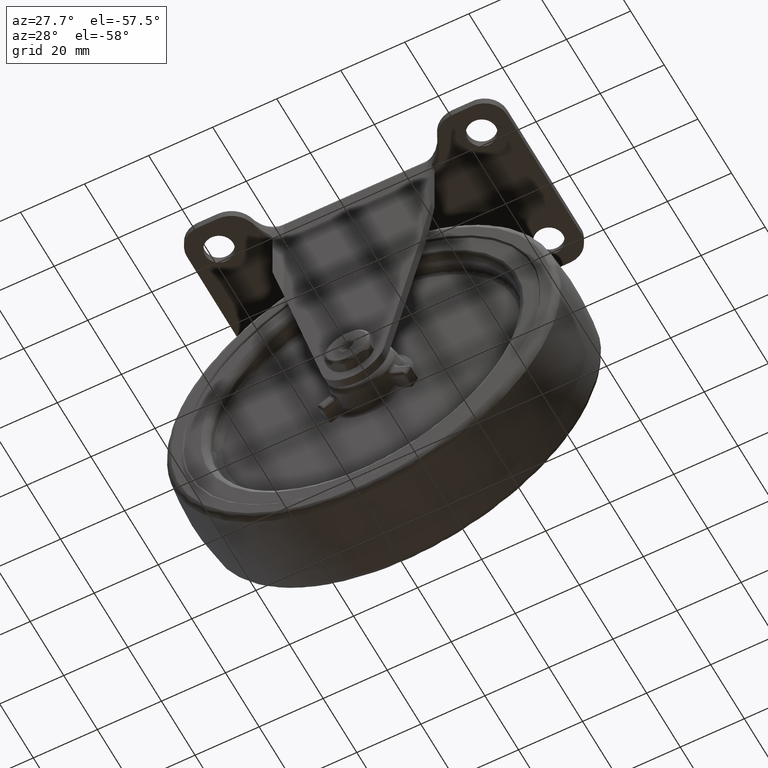
[diagram: clean part render]
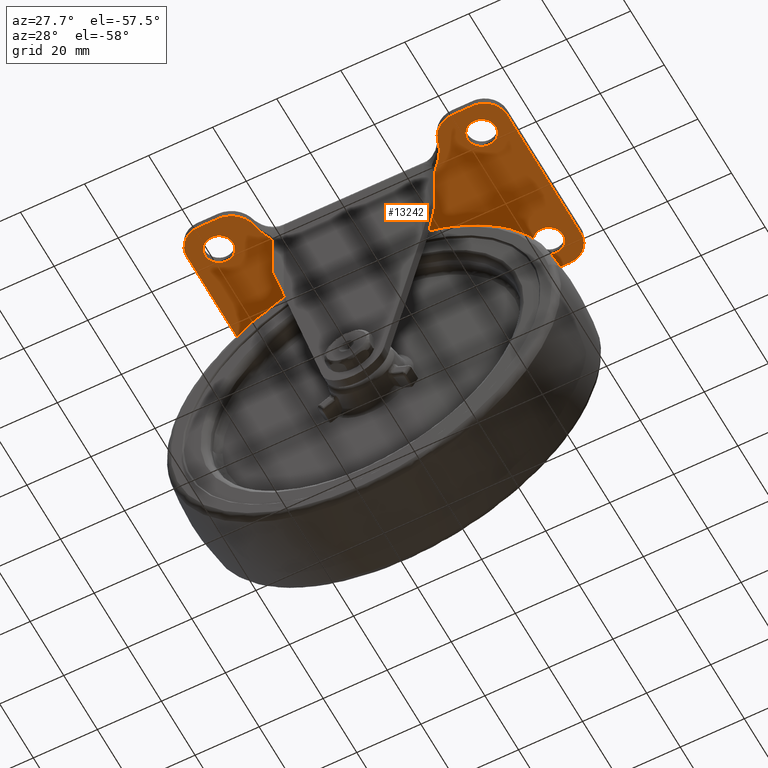
[diagram: same view with one face highlighted and labeled with its STEP entity id]
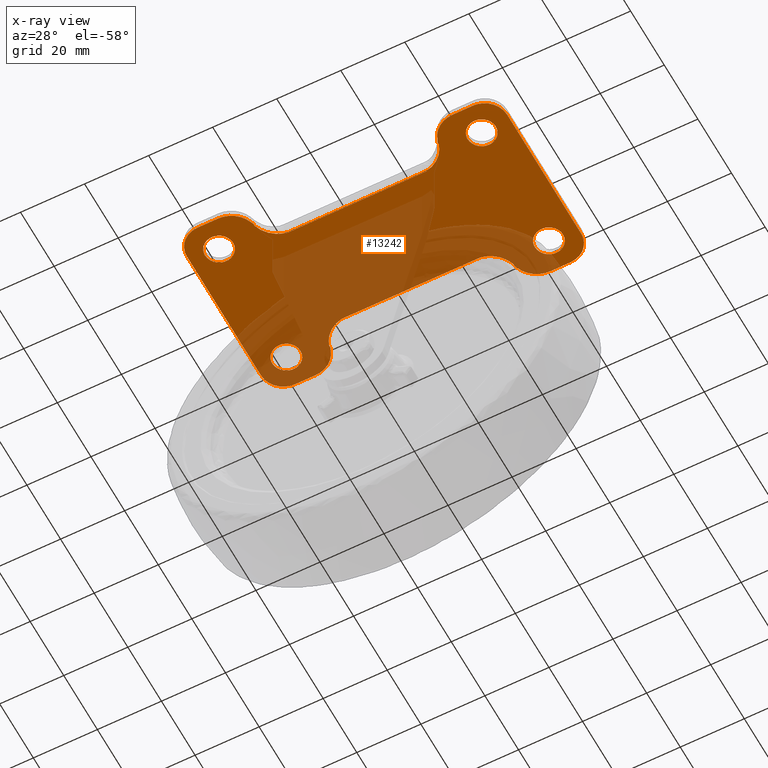
[diagram: x-ray of the same camera — body ghosted, the highlighted face saturated]
A machine part, auxiliary view. The second image highlights one B-rep face of the part: STEP entity #13242.
The next image is the same camera in x-ray: the body ghosted, the highlighted face saturated — about 48% of this face is hidden behind the body in this view.
In plain terms, the highlighted face is a freeform B-spline surface patch.
Its self-contained STEP definition (entity closure, byte-faithful):
#10641=CARTESIAN_POINT('',(45.400000100000007,-20.0,83.0));
#10642=VERTEX_POINT('',#10641);
#10643=CARTESIAN_POINT('',(41.345220029112987,-24.386436368112410,83.0));
#10644=VERTEX_POINT('',#10643);
#10645=CARTESIAN_POINT('',(45.400000100000007,-20.0,83.0));
#10646=CARTESIAN_POINT('',(45.400000100000000,-24.067318255615056,82.999999999999986));
#10647=CARTESIAN_POINT('',(41.345220029112994,-24.386436368112413,83.0));
#10655=(BOUNDED_CURVE()B_SPLINE_CURVE(2,(#10645,#10646,#10647),.UNSPECIFIED.,.F.,.U.)B_SPLINE_CURVE_WITH_KNOTS((3,3),(0.0,0.236331300627720),.UNSPECIFIED.)CURVE()GEOMETRIC_REPRESENTATION_ITEM()RATIONAL_B_SPLINE_CURVE((1.0,0.723120658611109,0.969723356161283))REPRESENTATION_ITEM(''));
#10656=EDGE_CURVE('',#10642,#10644,#10655,.T.);
#10697=CARTESIAN_POINT('',(40.654779970887013,-15.613563631887590,83.0));
#10698=VERTEX_POINT('',#10697);
#10704=CARTESIAN_POINT('',(40.654779970887020,-15.613563631887583,83.0));
#10705=CARTESIAN_POINT('',(40.827123525172375,-15.599999900000004,83.0));
#10706=CARTESIAN_POINT('',(41.0,-15.599999900000000,83.0));
#10707=CARTESIAN_POINT('',(45.400000100000014,-15.599999900000011,83.0));
#10708=CARTESIAN_POINT('',(45.400000100000007,-20.0,83.0));
#10716=(BOUNDED_CURVE()B_SPLINE_CURVE(2,(#10704,#10705,#10706,#10707,#10708),.UNSPECIFIED.,.F.,.U.)B_SPLINE_CURVE_WITH_KNOTS((3,2,3),(0.736331300627720,0.750000000000000,1.0),.UNSPECIFIED.)CURVE()GEOMETRIC_REPRESENTATION_ITEM()RATIONAL_B_SPLINE_CURVE((0.969723356161284,0.983986122575438,1.0,0.707106781186547,1.0))REPRESENTATION_ITEM(''));
#10717=EDGE_CURVE('',#10698,#10642,#10716,.T.);
#10740=CARTESIAN_POINT('',(36.599999900000000,-20.0,83.0));
#10741=VERTEX_POINT('',#10740);
#10742=CARTESIAN_POINT('',(41.345220029112994,-24.386436368112420,83.0));
#10743=CARTESIAN_POINT('',(41.172876474827625,-24.400000100000003,83.0));
#10744=CARTESIAN_POINT('',(41.0,-24.400000100000000,83.0));
#10745=CARTESIAN_POINT('',(36.599999900000000,-24.400000100000007,83.0));
#10746=CARTESIAN_POINT('',(36.599999900000000,-20.0,83.0));
#10754=(BOUNDED_CURVE()B_SPLINE_CURVE(2,(#10742,#10743,#10744,#10745,#10746),.UNSPECIFIED.,.F.,.U.)B_SPLINE_CURVE_WITH_KNOTS((3,2,3),(0.236331300627720,0.250000000000000,0.500000000000000),.UNSPECIFIED.)CURVE()GEOMETRIC_REPRESENTATION_ITEM()RATIONAL_B_SPLINE_CURVE((0.969723356161284,0.983986122575438,1.0,0.707106781186547,1.0))REPRESENTATION_ITEM(''));
#10755=EDGE_CURVE('',#10644,#10741,#10754,.T.);
#10757=CARTESIAN_POINT('',(36.599999900000000,-20.0,83.0));
#10758=CARTESIAN_POINT('',(36.599999900000000,-15.932681744384933,83.0));
#10759=CARTESIAN_POINT('',(40.654779970887006,-15.613563631887587,83.0));
#10767=(BOUNDED_CURVE()B_SPLINE_CURVE(2,(#10757,#10758,#10759),.UNSPECIFIED.,.F.,.U.)B_SPLINE_CURVE_WITH_KNOTS((3,3),(0.500000000000000,0.736331300627721),.UNSPECIFIED.)CURVE()GEOMETRIC_REPRESENTATION_ITEM()RATIONAL_B_SPLINE_CURVE((1.0,0.723120658611108,0.969723356161285))REPRESENTATION_ITEM(''));
#10768=EDGE_CURVE('',#10741,#10698,#10767,.T.);
#10823=CARTESIAN_POINT('',(-36.599999900000000,-20.0,83.0));
#10824=VERTEX_POINT('',#10823);
#10825=CARTESIAN_POINT('',(-40.654779970887013,-24.386436368112410,83.0));
#10826=VERTEX_POINT('',#10825);
#10827=CARTESIAN_POINT('',(-36.599999900000000,-20.0,83.0));
#10828=CARTESIAN_POINT('',(-36.599999900000000,-24.067318255615056,82.999999999999986));
#10829=CARTESIAN_POINT('',(-40.654779970887006,-24.386436368112413,83.0));
#10837=(BOUNDED_CURVE()B_SPLINE_CURVE(2,(#10827,#10828,#10829),.UNSPECIFIED.,.F.,.U.)B_SPLINE_CURVE_WITH_KNOTS((3,3),(0.0,0.236331300627720),.UNSPECIFIED.)CURVE()GEOMETRIC_REPRESENTATION_ITEM()RATIONAL_B_SPLINE_CURVE((1.0,0.723120658611109,0.969723356161283))REPRESENTATION_ITEM(''));
#10838=EDGE_CURVE('',#10824,#10826,#10837,.T.);
#10879=CARTESIAN_POINT('',(-41.345220029112987,-15.613563631887590,83.0));
#10880=VERTEX_POINT('',#10879);
#10886=CARTESIAN_POINT('',(-41.345220029112994,-15.613563631887587,83.0));
#10887=CARTESIAN_POINT('',(-41.172876474827625,-15.599999900000006,83.0));
#10888=CARTESIAN_POINT('',(-41.0,-15.599999900000000,83.0));
#10889=CARTESIAN_POINT('',(-36.599999900000000,-15.599999900000011,83.0));
#10890=CARTESIAN_POINT('',(-36.599999900000000,-20.0,83.0));
#10898=(BOUNDED_CURVE()B_SPLINE_CURVE(2,(#10886,#10887,#10888,#10889,#10890),.UNSPECIFIED.,.F.,.U.)B_SPLINE_CURVE_WITH_KNOTS((3,2,3),(0.736331300627720,0.750000000000000,1.0),.UNSPECIFIED.)CURVE()GEOMETRIC_REPRESENTATION_ITEM()RATIONAL_B_SPLINE_CURVE((0.969723356161283,0.983986122575438,1.0,0.707106781186547,1.0))REPRESENTATION_ITEM(''));
#10899=EDGE_CURVE('',#10880,#10824,#10898,.T.);
#10922=CARTESIAN_POINT('',(-45.400000100000007,-20.0,83.0));
#10923=VERTEX_POINT('',#10922);
#10924=CARTESIAN_POINT('',(-40.654779970887006,-24.386436368112413,83.0));
#10925=CARTESIAN_POINT('',(-40.827123525172382,-24.400000100000003,83.000000000000014));
#10926=CARTESIAN_POINT('',(-41.0,-24.400000100000000,83.0));
#10927=CARTESIAN_POINT('',(-45.400000100000014,-24.400000100000007,83.0));
#10928=CARTESIAN_POINT('',(-45.400000100000007,-20.0,83.0));
#10936=(BOUNDED_CURVE()B_SPLINE_CURVE(2,(#10924,#10925,#10926,#10927,#10928),.UNSPECIFIED.,.F.,.U.)B_SPLINE_CURVE_WITH_KNOTS((3,2,3),(0.236331300627720,0.250000000000000,0.500000000000000),.UNSPECIFIED.)CURVE()GEOMETRIC_REPRESENTATION_ITEM()RATIONAL_B_SPLINE_CURVE((0.969723356161283,0.983986122575438,1.0,0.707106781186547,1.0))REPRESENTATION_ITEM(''));
#10937=EDGE_CURVE('',#10826,#10923,#10936,.T.);
#10939=CARTESIAN_POINT('',(-45.400000100000007,-20.0,83.0));
#10940=CARTESIAN_POINT('',(-45.400000100000000,-15.932681744384933,83.0));
#10941=CARTESIAN_POINT('',(-41.345220029112994,-15.613563631887587,83.0));
#10949=(BOUNDED_CURVE()B_SPLINE_CURVE(2,(#10939,#10940,#10941),.UNSPECIFIED.,.F.,.U.)B_SPLINE_CURVE_WITH_KNOTS((3,3),(0.500000000000000,0.736331300627721),.UNSPECIFIED.)CURVE()GEOMETRIC_REPRESENTATION_ITEM()RATIONAL_B_SPLINE_CURVE((1.0,0.723120658611108,0.969723356161285))REPRESENTATION_ITEM(''));
#10950=EDGE_CURVE('',#10923,#10880,#10949,.T.);
#11005=CARTESIAN_POINT('',(-36.599999900000000,20.0,83.0));
#11006=VERTEX_POINT('',#11005);
#11007=CARTESIAN_POINT('',(-40.654779970887013,15.613563631887590,83.0));
#11008=VERTEX_POINT('',#11007);
#11009=CARTESIAN_POINT('',(-36.599999900000000,20.0,83.0));
#11010=CARTESIAN_POINT('',(-36.599999900000007,15.932681744384960,83.0));
#11011=CARTESIAN_POINT('',(-40.654779970887013,15.613563631887590,83.0));
#11019=(BOUNDED_CURVE()B_SPLINE_CURVE(2,(#11009,#11010,#11011),.UNSPECIFIED.,.F.,.U.)B_SPLINE_CURVE_WITH_KNOTS((3,3),(0.0,0.236331300627720),.UNSPECIFIED.)CURVE()GEOMETRIC_REPRESENTATION_ITEM()RATIONAL_B_SPLINE_CURVE((1.0,0.723120658611109,0.969723356161283))REPRESENTATION_ITEM(''));
#11020=EDGE_CURVE('',#11006,#11008,#11019,.T.);
#11061=CARTESIAN_POINT('',(-41.345220029112987,24.386436368112410,83.0));
#11062=VERTEX_POINT('',#11061);
#11068=CARTESIAN_POINT('',(-41.345220029112994,24.386436368112413,83.0));
#11069=CARTESIAN_POINT('',(-41.172876474827625,24.400000099999993,83.0));
#11070=CARTESIAN_POINT('',(-41.0,24.400000100000000,83.0));
#11071=CARTESIAN_POINT('',(-36.599999900000000,24.400000100000007,83.0));
#11072=CARTESIAN_POINT('',(-36.599999900000000,20.0,83.0));
#11080=(BOUNDED_CURVE()B_SPLINE_CURVE(2,(#11068,#11069,#11070,#11071,#11072),.UNSPECIFIED.,.F.,.U.)B_SPLINE_CURVE_WITH_KNOTS((3,2,3),(0.736331300627720,0.750000000000000,1.0),.UNSPECIFIED.)CURVE()GEOMETRIC_REPRESENTATION_ITEM()RATIONAL_B_SPLINE_CURVE((0.969723356161283,0.983986122575438,1.0,0.707106781186547,1.0))REPRESENTATION_ITEM(''));
#11081=EDGE_CURVE('',#11062,#11006,#11080,.T.);
#11104=CARTESIAN_POINT('',(-45.400000100000007,20.0,83.0));
#11105=VERTEX_POINT('',#11104);
#11106=CARTESIAN_POINT('',(-40.654779970887006,15.613563631887587,83.0));
#11107=CARTESIAN_POINT('',(-40.827123525172375,15.599999900000006,83.000000000000014));
#11108=CARTESIAN_POINT('',(-41.0,15.599999900000000,83.0));
#11109=CARTESIAN_POINT('',(-45.400000100000014,15.599999900000011,83.0));
#11110=CARTESIAN_POINT('',(-45.400000100000007,20.0,83.0));
#11118=(BOUNDED_CURVE()B_SPLINE_CURVE(2,(#11106,#11107,#11108,#11109,#11110),.UNSPECIFIED.,.F.,.U.)B_SPLINE_CURVE_WITH_KNOTS((3,2,3),(0.236331300627720,0.250000000000000,0.500000000000000),.UNSPECIFIED.)CURVE()GEOMETRIC_REPRESENTATION_ITEM()RATIONAL_B_SPLINE_CURVE((0.969723356161283,0.983986122575438,1.0,0.707106781186547,1.0))REPRESENTATION_ITEM(''));
#11119=EDGE_CURVE('',#11008,#11105,#11118,.T.);
#11121=CARTESIAN_POINT('',(-45.400000100000007,20.0,83.0));
#11122=CARTESIAN_POINT('',(-45.400000100000000,24.067318255615078,83.0));
#11123=CARTESIAN_POINT('',(-41.345220029112994,24.386436368112417,83.0));
#11131=(BOUNDED_CURVE()B_SPLINE_CURVE(2,(#11121,#11122,#11123),.UNSPECIFIED.,.F.,.U.)B_SPLINE_CURVE_WITH_KNOTS((3,3),(0.500000000000000,0.736331300627721),.UNSPECIFIED.)CURVE()GEOMETRIC_REPRESENTATION_ITEM()RATIONAL_B_SPLINE_CURVE((1.0,0.723120658611108,0.969723356161285))REPRESENTATION_ITEM(''));
#11132=EDGE_CURVE('',#11105,#11062,#11131,.T.);
#11187=CARTESIAN_POINT('',(45.400000100000007,20.0,83.0));
#11188=VERTEX_POINT('',#11187);
#11189=CARTESIAN_POINT('',(41.345220029112987,15.613563631887590,83.0));
#11190=VERTEX_POINT('',#11189);
#11191=CARTESIAN_POINT('',(45.400000100000007,20.0,83.0));
#11192=CARTESIAN_POINT('',(45.400000100000000,15.932681744384961,82.999999999999986));
#11193=CARTESIAN_POINT('',(41.345220029112994,15.613563631887587,83.0));
#11201=(BOUNDED_CURVE()B_SPLINE_CURVE(2,(#11191,#11192,#11193),.UNSPECIFIED.,.F.,.U.)B_SPLINE_CURVE_WITH_KNOTS((3,3),(0.0,0.236331300627720),.UNSPECIFIED.)CURVE()GEOMETRIC_REPRESENTATION_ITEM()RATIONAL_B_SPLINE_CURVE((1.0,0.723120658611109,0.969723356161283))REPRESENTATION_ITEM(''));
#11202=EDGE_CURVE('',#11188,#11190,#11201,.T.);
#11243=CARTESIAN_POINT('',(40.654779970887013,24.386436368112410,83.0));
#11244=VERTEX_POINT('',#11243);
#11250=CARTESIAN_POINT('',(40.654779970887006,24.386436368112413,83.0));
#11251=CARTESIAN_POINT('',(40.827123525172382,24.400000099999993,83.0));
#11252=CARTESIAN_POINT('',(41.0,24.400000100000000,83.0));
#11253=CARTESIAN_POINT('',(45.400000100000014,24.400000100000007,83.0));
#11254=CARTESIAN_POINT('',(45.400000100000007,20.0,83.0));
#11262=(BOUNDED_CURVE()B_SPLINE_CURVE(2,(#11250,#11251,#11252,#11253,#11254),.UNSPECIFIED.,.F.,.U.)B_SPLINE_CURVE_WITH_KNOTS((3,2,3),(0.736331300627720,0.750000000000000,1.0),.UNSPECIFIED.)CURVE()GEOMETRIC_REPRESENTATION_ITEM()RATIONAL_B_SPLINE_CURVE((0.969723356161283,0.983986122575438,1.0,0.707106781186547,1.0))REPRESENTATION_ITEM(''));
#11263=EDGE_CURVE('',#11244,#11188,#11262,.T.);
#11286=CARTESIAN_POINT('',(36.599999900000000,20.0,83.0));
#11287=VERTEX_POINT('',#11286);
#11288=CARTESIAN_POINT('',(41.345220029112994,15.613563631887587,83.0));
#11289=CARTESIAN_POINT('',(41.172876474827625,15.599999900000006,83.000000000000014));
#11290=CARTESIAN_POINT('',(41.0,15.599999900000000,83.0));
#11291=CARTESIAN_POINT('',(36.599999900000000,15.599999900000011,83.0));
#11292=CARTESIAN_POINT('',(36.599999900000000,20.0,83.0));
#11300=(BOUNDED_CURVE()B_SPLINE_CURVE(2,(#11288,#11289,#11290,#11291,#11292),.UNSPECIFIED.,.F.,.U.)B_SPLINE_CURVE_WITH_KNOTS((3,2,3),(0.236331300627720,0.250000000000000,0.500000000000000),.UNSPECIFIED.)CURVE()GEOMETRIC_REPRESENTATION_ITEM()RATIONAL_B_SPLINE_CURVE((0.969723356161283,0.983986122575438,1.0,0.707106781186547,1.0))REPRESENTATION_ITEM(''));
#11301=EDGE_CURVE('',#11190,#11287,#11300,.T.);
#11303=CARTESIAN_POINT('',(36.599999900000000,20.0,83.0));
#11304=CARTESIAN_POINT('',(36.599999900000000,24.067318255615078,83.0));
#11305=CARTESIAN_POINT('',(40.654779970887006,24.386436368112417,83.0));
#11313=(BOUNDED_CURVE()B_SPLINE_CURVE(2,(#11303,#11304,#11305),.UNSPECIFIED.,.F.,.U.)B_SPLINE_CURVE_WITH_KNOTS((3,3),(0.500000000000000,0.736331300627721),.UNSPECIFIED.)CURVE()GEOMETRIC_REPRESENTATION_ITEM()RATIONAL_B_SPLINE_CURVE((1.0,0.723120658611108,0.969723356161285))REPRESENTATION_ITEM(''));
#11314=EDGE_CURVE('',#11287,#11244,#11313,.T.);
#12096=CARTESIAN_POINT('',(28.745237669189049,-22.921851549150301,83.0));
#12097=VERTEX_POINT('',#12096);
#12112=CARTESIAN_POINT('',(28.745237669189049,-22.144441359476499,83.0));
#12113=VERTEX_POINT('',#12112);
#12127=CARTESIAN_POINT('',(28.745237669189049,-22.921851549150301,83.0));
#12128=CARTESIAN_POINT('',(28.745237669189049,-22.144441359476499,83.0));
#12129=QUASI_UNIFORM_CURVE('',1,(#12127,#12128),.UNSPECIFIED.,.F.,.U.);
#12130=EDGE_CURVE('',#12097,#12113,#12129,.T.);
#12299=CARTESIAN_POINT('',(-28.745237669189049,-22.144441359476499,83.0));
#12300=VERTEX_POINT('',#12299);
#12315=CARTESIAN_POINT('',(-28.745237669189049,-22.921851549150698,83.0));
#12316=VERTEX_POINT('',#12315);
#12330=CARTESIAN_POINT('',(-28.745237669189049,-22.921851549150698,83.0));
#12331=CARTESIAN_POINT('',(-28.745237669189049,-22.144441359476499,83.0));
#12332=QUASI_UNIFORM_CURVE('',1,(#12330,#12331),.UNSPECIFIED.,.F.,.U.);
#12333=EDGE_CURVE('',#12316,#12300,#12332,.T.);
#12626=CARTESIAN_POINT('',(-28.745237669189049,22.921851549150698,83.0));
#12627=VERTEX_POINT('',#12626);
#12642=CARTESIAN_POINT('',(-28.745237669189049,22.144441359476499,83.0));
#12643=VERTEX_POINT('',#12642);
#12657=CARTESIAN_POINT('',(-28.745237669189049,22.144441359476499,83.0));
#12658=CARTESIAN_POINT('',(-28.745237669189049,22.921851549150698,83.0));
#12659=QUASI_UNIFORM_CURVE('',1,(#12657,#12658),.UNSPECIFIED.,.F.,.U.);
#12660=EDGE_CURVE('',#12643,#12627,#12659,.T.);
#12768=CARTESIAN_POINT('',(28.745237669189049,22.144441359476499,83.0));
#12769=VERTEX_POINT('',#12768);
#12784=CARTESIAN_POINT('',(28.745237669189049,22.921851549150301,83.0));
#12785=VERTEX_POINT('',#12784);
#12799=CARTESIAN_POINT('',(28.745237669189049,22.144441359476499,83.0));
#12800=CARTESIAN_POINT('',(28.745237669189049,22.921851549150301,83.0));
#12801=QUASI_UNIFORM_CURVE('',1,(#12799,#12800),.UNSPECIFIED.,.F.,.U.);
#12802=EDGE_CURVE('',#12769,#12785,#12801,.T.);
#12825=CARTESIAN_POINT('',(-21.590155530322349,16.0,83.0));
#12826=VERTEX_POINT('',#12825);
#12832=CARTESIAN_POINT('',(-21.590155530322349,15.999999999999989,83.0));
#12833=CARTESIAN_POINT('',(-27.054956261418130,16.874543607641517,83.0));
#12834=CARTESIAN_POINT('',(-28.745237669189020,22.144441359476509,83.0));
#12842=(BOUNDED_CURVE()B_SPLINE_CURVE(2,(#12832,#12833,#12834),.UNSPECIFIED.,.F.,.U.)CURVE()GEOMETRIC_REPRESENTATION_ITEM()QUASI_UNIFORM_CURVE()RATIONAL_B_SPLINE_CURVE((1.0,0.852071238014258,1.0))REPRESENTATION_ITEM(''));
#12843=EDGE_CURVE('',#12826,#12643,#12842,.T.);
#12863=CARTESIAN_POINT('',(21.590155530322349,-16.0,83.0));
#12864=VERTEX_POINT('',#12863);
#12870=CARTESIAN_POINT('',(21.590155530322338,-15.999999999999989,83.0));
#12871=CARTESIAN_POINT('',(27.054956261418120,-16.874543607641510,83.0));
#12872=CARTESIAN_POINT('',(28.745237669189020,-22.144441359476509,83.0));
#12880=(BOUNDED_CURVE()B_SPLINE_CURVE(2,(#12870,#12871,#12872),.UNSPECIFIED.,.F.,.U.)CURVE()GEOMETRIC_REPRESENTATION_ITEM()QUASI_UNIFORM_CURVE()RATIONAL_B_SPLINE_CURVE((1.0,0.852071238014258,1.0))REPRESENTATION_ITEM(''));
#12881=EDGE_CURVE('',#12864,#12113,#12880,.T.);
#12905=CARTESIAN_POINT('',(-21.590155530322349,-16.0,83.0));
#12906=VERTEX_POINT('',#12905);
#12907=CARTESIAN_POINT('',(-28.745237669189020,-22.144441359476509,83.0));
#12908=CARTESIAN_POINT('',(-27.054956261418127,-16.874543607641513,83.0));
#12909=CARTESIAN_POINT('',(-21.590155530322360,-15.999999999999989,83.0));
#12917=(BOUNDED_CURVE()B_SPLINE_CURVE(2,(#12907,#12908,#12909),.UNSPECIFIED.,.F.,.U.)CURVE()GEOMETRIC_REPRESENTATION_ITEM()QUASI_UNIFORM_CURVE()RATIONAL_B_SPLINE_CURVE((1.0,0.852071238014258,1.0))REPRESENTATION_ITEM(''));
#12918=EDGE_CURVE('',#12300,#12906,#12917,.T.);
#12950=CARTESIAN_POINT('',(21.590155530322349,16.0,83.0));
#12951=VERTEX_POINT('',#12950);
#12952=CARTESIAN_POINT('',(28.745237669189020,22.144441359476509,83.0));
#12953=CARTESIAN_POINT('',(27.054956261418127,16.874543607641506,83.000000000000014));
#12954=CARTESIAN_POINT('',(21.590155530322349,15.999999999999989,83.0));
#12962=(BOUNDED_CURVE()B_SPLINE_CURVE(2,(#12952,#12953,#12954),.UNSPECIFIED.,.F.,.U.)CURVE()GEOMETRIC_REPRESENTATION_ITEM()QUASI_UNIFORM_CURVE()RATIONAL_B_SPLINE_CURVE((1.0,0.852071238014258,1.0))REPRESENTATION_ITEM(''));
#12963=EDGE_CURVE('',#12769,#12951,#12962,.T.);
#12973=CARTESIAN_POINT('',(-54.994999806180601,-31.897099887584751,83.0));
#12974=CARTESIAN_POINT('',(54.995002488389623,-31.897099887584751,83.0));
#12975=CARTESIAN_POINT('',(-54.994999806180601,31.897101443265981,83.0));
#12976=CARTESIAN_POINT('',(54.995002488389623,31.897101443265981,83.0));
#12977=B_SPLINE_SURFACE_WITH_KNOTS('',1,1,((#12973,#12975),(#12974,#12976)),.UNSPECIFIED.,.F.,.F.,.U.,(2,2),(2,2),(0.0,109.990002294570200),(0.0,63.794201330850733),.UNSPECIFIED.);
#12978=ORIENTED_EDGE('',*,*,#12918,.F.);
#12979=ORIENTED_EDGE('',*,*,#12333,.F.);
#12980=CARTESIAN_POINT('',(-29.102524228969649,-23.750001552712749,83.0));
#12981=VERTEX_POINT('',#12980);
#12982=CARTESIAN_POINT('',(-28.745237669189049,-22.921851549150698,83.0));
#12983=CARTESIAN_POINT('',(-28.947259885844428,-23.325840144237215,83.0));
#12984=CARTESIAN_POINT('',(-29.102524228969649,-23.750001552712749,83.0));
#12992=(BOUNDED_CURVE()B_SPLINE_CURVE(2,(#12982,#12983,#12984),.UNSPECIFIED.,.F.,.U.)CURVE()GEOMETRIC_REPRESENTATION_ITEM()QUASI_UNIFORM_CURVE()RATIONAL_B_SPLINE_CURVE((1.0,0.998409895108221,1.0))REPRESENTATION_ITEM(''));
#12993=EDGE_CURVE('',#12316,#12981,#12992,.T.);
#12994=ORIENTED_EDGE('',*,*,#12993,.T.);
#12995=CARTESIAN_POINT('',(-36.615010000000012,-29.0,83.0));
#12996=VERTEX_POINT('',#12995);
#12997=CARTESIAN_POINT('',(-29.102524228969649,-23.750001552712749,83.0));
#12998=CARTESIAN_POINT('',(-31.024323567332885,-28.999999473630670,82.999999999999986));
#12999=CARTESIAN_POINT('',(-36.615010000000012,-29.0,83.0));
#13007=(BOUNDED_CURVE()B_SPLINE_CURVE(2,(#12997,#12998,#12999),.UNSPECIFIED.,.F.,.U.)CURVE()GEOMETRIC_REPRESENTATION_ITEM()QUASI_UNIFORM_CURVE()RATIONAL_B_SPLINE_CURVE((1.0,0.819679914869648,1.0))REPRESENTATION_ITEM(''));
#13008=EDGE_CURVE('',#12981,#12996,#13007,.T.);
#13009=ORIENTED_EDGE('',*,*,#13008,.T.);
#13010=CARTESIAN_POINT('',(-43.0,-29.0,83.0));
#13011=VERTEX_POINT('',#13010);
#13012=CARTESIAN_POINT('',(-36.615010000000012,-29.0,83.0));
#13013=CARTESIAN_POINT('',(-43.0,-29.0,83.0));
#13014=QUASI_UNIFORM_CURVE('',1,(#13012,#13013),.UNSPECIFIED.,.F.,.U.);
#13015=EDGE_CURVE('',#12996,#13011,#13014,.T.);
#13016=ORIENTED_EDGE('',*,*,#13015,.T.);
#13017=CARTESIAN_POINT('',(-50.0,-21.999997556539199,83.0));
#13018=VERTEX_POINT('',#13017);
#13019=CARTESIAN_POINT('',(-43.0,-29.0,83.0));
#13020=CARTESIAN_POINT('',(-45.899495652284777,-28.999999999999993,83.0));
#13021=CARTESIAN_POINT('',(-47.949748332199597,-26.949746604411910,83.0));
#13022=CARTESIAN_POINT('',(-50.000001012114424,-24.899493208823817,83.0));
#13023=CARTESIAN_POINT('',(-50.0,-21.999997556539199,83.0));
#13031=(BOUNDED_CURVE()B_SPLINE_CURVE(2,(#13019,#13020,#13021,#13022,#13023),.UNSPECIFIED.,.F.,.U.)B_SPLINE_CURVE_WITH_KNOTS((3,2,3),(0.0,0.500000000000000,1.0),.UNSPECIFIED.)CURVE()GEOMETRIC_REPRESENTATION_ITEM()RATIONAL_B_SPLINE_CURVE((1.0,0.923879499115856,1.0,0.923879499115856,1.0))REPRESENTATION_ITEM(''));
#13032=EDGE_CURVE('',#13011,#13018,#13031,.T.);
#13033=ORIENTED_EDGE('',*,*,#13032,.T.);
#13034=CARTESIAN_POINT('',(-50.0,22.0,83.0));
#13035=VERTEX_POINT('',#13034);
#13036=CARTESIAN_POINT('',(-50.0,-21.999997556539199,83.0));
#13037=CARTESIAN_POINT('',(-50.0,22.0,83.0));
#13038=QUASI_UNIFORM_CURVE('',1,(#13036,#13037),.UNSPECIFIED.,.F.,.U.);
#13039=EDGE_CURVE('',#13018,#13035,#13038,.T.);
#13040=ORIENTED_EDGE('',*,*,#13039,.T.);
#13041=CARTESIAN_POINT('',(-43.000003665191407,29.0,83.0));
#13042=VERTEX_POINT('',#13041);
#13043=CARTESIAN_POINT('',(-49.999999999999993,22.0,83.0));
#13044=CARTESIAN_POINT('',(-49.999999999999986,28.999996334809556,83.0));
#13045=CARTESIAN_POINT('',(-43.000003665191407,29.0,83.0));
#13053=(BOUNDED_CURVE()B_SPLINE_CURVE(2,(#13043,#13044,#13045),.UNSPECIFIED.,.F.,.U.)CURVE()GEOMETRIC_REPRESENTATION_ITEM()QUASI_UNIFORM_CURVE()RATIONAL_B_SPLINE_CURVE((1.0,0.707106966306645,1.0))REPRESENTATION_ITEM(''));
#13054=EDGE_CURVE('',#13035,#13042,#13053,.T.);
#13055=ORIENTED_EDGE('',*,*,#13054,.T.);
#13056=CARTESIAN_POINT('',(-36.615010000000012,29.0,83.0));
#13057=VERTEX_POINT('',#13056);
#13058=CARTESIAN_POINT('',(-43.000003665191407,29.0,83.0));
#13059=CARTESIAN_POINT('',(-36.615010000000012,29.0,83.0));
#13060=QUASI_UNIFORM_CURVE('',1,(#13058,#13059),.UNSPECIFIED.,.F.,.U.);
#13061=EDGE_CURVE('',#13042,#13057,#13060,.T.);
#13062=ORIENTED_EDGE('',*,*,#13061,.T.);
#13063=CARTESIAN_POINT('',(-29.102524228969649,23.750001552712749,83.0));
#13064=VERTEX_POINT('',#13063);
#13065=CARTESIAN_POINT('',(-36.615010000000012,29.0,83.0));
#13066=CARTESIAN_POINT('',(-31.024323567332878,28.999999473630663,83.0));
#13067=CARTESIAN_POINT('',(-29.102524228969649,23.750001552712749,83.0));
#13075=(BOUNDED_CURVE()B_SPLINE_CURVE(2,(#13065,#13066,#13067),.UNSPECIFIED.,.F.,.U.)CURVE()GEOMETRIC_REPRESENTATION_ITEM()QUASI_UNIFORM_CURVE()RATIONAL_B_SPLINE_CURVE((1.0,0.819679914869648,1.0))REPRESENTATION_ITEM(''));
#13076=EDGE_CURVE('',#13057,#13064,#13075,.T.);
#13077=ORIENTED_EDGE('',*,*,#13076,.T.);
#13078=CARTESIAN_POINT('',(-29.102524228969649,23.750001552712749,83.0));
#13079=CARTESIAN_POINT('',(-28.947259885844428,23.325840144237215,83.0));
#13080=CARTESIAN_POINT('',(-28.745237669189049,22.921851549150698,83.0));
#13088=(BOUNDED_CURVE()B_SPLINE_CURVE(2,(#13078,#13079,#13080),.UNSPECIFIED.,.F.,.U.)CURVE()GEOMETRIC_REPRESENTATION_ITEM()QUASI_UNIFORM_CURVE()RATIONAL_B_SPLINE_CURVE((1.0,0.998409895108221,1.0))REPRESENTATION_ITEM(''));
#13089=EDGE_CURVE('',#13064,#12627,#13088,.T.);
#13090=ORIENTED_EDGE('',*,*,#13089,.T.);
#13091=ORIENTED_EDGE('',*,*,#12660,.F.);
#13092=ORIENTED_EDGE('',*,*,#12843,.F.);
#13093=CARTESIAN_POINT('',(21.590155530322349,16.0,83.0));
#13094=CARTESIAN_POINT('',(-21.590155530322349,16.0,83.0));
#13095=QUASI_UNIFORM_CURVE('',1,(#13093,#13094),.UNSPECIFIED.,.F.,.U.);
#13096=EDGE_CURVE('',#12951,#12826,#13095,.T.);
#13097=ORIENTED_EDGE('',*,*,#13096,.F.);
#13098=ORIENTED_EDGE('',*,*,#12963,.F.);
#13099=ORIENTED_EDGE('',*,*,#12802,.T.);
#13100=CARTESIAN_POINT('',(29.102524228969550,23.750001552711950,83.0));
#13101=VERTEX_POINT('',#13100);
#13102=CARTESIAN_POINT('',(28.745237669189049,22.921851549150301,83.0));
#13103=CARTESIAN_POINT('',(28.947259885844360,23.325840144236626,83.0));
#13104=CARTESIAN_POINT('',(29.102524228969550,23.750001552711950,83.0));
#13112=(BOUNDED_CURVE()B_SPLINE_CURVE(2,(#13102,#13103,#13104),.UNSPECIFIED.,.F.,.U.)CURVE()GEOMETRIC_REPRESENTATION_ITEM()QUASI_UNIFORM_CURVE()RATIONAL_B_SPLINE_CURVE((1.0,0.998409895108222,1.0))REPRESENTATION_ITEM(''));
#13113=EDGE_CURVE('',#12785,#13101,#13112,.T.);
#13114=ORIENTED_EDGE('',*,*,#13113,.T.);
#13115=CARTESIAN_POINT('',(36.615012792526947,29.0,83.0));
#13116=VERTEX_POINT('',#13115);
#13117=CARTESIAN_POINT('',(29.102524228969550,23.750001552711950,83.0));
#13118=CARTESIAN_POINT('',(31.024324281700338,29.000001425149424,83.0));
#13119=CARTESIAN_POINT('',(36.615012792526947,29.0,83.0));
#13127=(BOUNDED_CURVE()B_SPLINE_CURVE(2,(#13117,#13118,#13119),.UNSPECIFIED.,.F.,.U.)CURVE()GEOMETRIC_REPRESENTATION_ITEM()QUASI_UNIFORM_CURVE()RATIONAL_B_SPLINE_CURVE((1.0,0.819679814893335,1.0))REPRESENTATION_ITEM(''));
#13128=EDGE_CURVE('',#13101,#13116,#13127,.T.);
#13129=ORIENTED_EDGE('',*,*,#13128,.T.);
#13130=CARTESIAN_POINT('',(43.0,29.0,83.0));
#13131=VERTEX_POINT('',#13130);
#13132=CARTESIAN_POINT('',(36.615012792526947,29.0,83.0));
#13133=CARTESIAN_POINT('',(43.0,29.0,83.0));
#13134=QUASI_UNIFORM_CURVE('',1,(#13132,#13133),.UNSPECIFIED.,.F.,.U.);
#13135=EDGE_CURVE('',#13116,#13131,#13134,.T.);
#13136=ORIENTED_EDGE('',*,*,#13135,.T.);
#13137=CARTESIAN_POINT('',(50.0,22.0,83.0));
#13138=VERTEX_POINT('',#13137);
#13139=CARTESIAN_POINT('',(43.0,29.0,83.0));
#13140=CARTESIAN_POINT('',(49.999999999999993,28.999999999999989,83.0));
#13141=CARTESIAN_POINT('',(49.999999999999993,22.0,83.0));
#13149=(BOUNDED_CURVE()B_SPLINE_CURVE(2,(#13139,#13140,#13141),.UNSPECIFIED.,.F.,.U.)CURVE()GEOMETRIC_REPRESENTATION_ITEM()QUASI_UNIFORM_CURVE()RATIONAL_B_SPLINE_CURVE((1.0,0.707106781186547,1.0))REPRESENTATION_ITEM(''));
#13150=EDGE_CURVE('',#13131,#13138,#13149,.T.);
#13151=ORIENTED_EDGE('',*,*,#13150,.T.);
#13152=CARTESIAN_POINT('',(50.0,-22.0,83.0));
#13153=VERTEX_POINT('',#13152);
#13154=CARTESIAN_POINT('',(50.0,22.0,83.0));
#13155=CARTESIAN_POINT('',(50.0,-22.0,83.0));
#13156=QUASI_UNIFORM_CURVE('',1,(#13154,#13155),.UNSPECIFIED.,.F.,.U.);
#13157=EDGE_CURVE('',#13138,#13153,#13156,.T.);
#13158=ORIENTED_EDGE('',*,*,#13157,.T.);
#13159=CARTESIAN_POINT('',(43.000002443461199,-29.0,83.0));
#13160=VERTEX_POINT('',#13159);
#13161=CARTESIAN_POINT('',(49.999999999999993,-22.0,83.0));
#13162=CARTESIAN_POINT('',(49.999999999999979,-28.999997556539221,83.000000000000014));
#13163=CARTESIAN_POINT('',(43.000002443461199,-29.0,83.0));
#13171=(BOUNDED_CURVE()B_SPLINE_CURVE(2,(#13161,#13162,#13163),.UNSPECIFIED.,.F.,.U.)CURVE()GEOMETRIC_REPRESENTATION_ITEM()QUASI_UNIFORM_CURVE()RATIONAL_B_SPLINE_CURVE((1.0,0.707106904599964,1.0))REPRESENTATION_ITEM(''));
#13172=EDGE_CURVE('',#13153,#13160,#13171,.T.);
#13173=ORIENTED_EDGE('',*,*,#13172,.T.);
#13174=CARTESIAN_POINT('',(36.615010000000012,-29.0,83.0));
#13175=VERTEX_POINT('',#13174);
#13176=CARTESIAN_POINT('',(43.000002443461199,-29.0,83.0));
#13177=CARTESIAN_POINT('',(36.615010000000012,-29.0,83.0));
#13178=QUASI_UNIFORM_CURVE('',1,(#13176,#13177),.UNSPECIFIED.,.F.,.U.);
#13179=EDGE_CURVE('',#13160,#13175,#13178,.T.);
#13180=ORIENTED_EDGE('',*,*,#13179,.T.);
#13181=CARTESIAN_POINT('',(29.102524228969550,-23.750001552711950,83.0));
#13182=VERTEX_POINT('',#13181);
#13183=CARTESIAN_POINT('',(36.615010000000012,-29.0,83.0));
#13184=CARTESIAN_POINT('',(31.024323567332388,-28.999999473630638,82.999999999999986));
#13185=CARTESIAN_POINT('',(29.102524228969550,-23.750001552711950,83.0));
#13193=(BOUNDED_CURVE()B_SPLINE_CURVE(2,(#13183,#13184,#13185),.UNSPECIFIED.,.F.,.U.)CURVE()GEOMETRIC_REPRESENTATION_ITEM()QUASI_UNIFORM_CURVE()RATIONAL_B_SPLINE_CURVE((1.0,0.819679914869620,1.0))REPRESENTATION_ITEM(''));
#13194=EDGE_CURVE('',#13175,#13182,#13193,.T.);
#13195=ORIENTED_EDGE('',*,*,#13194,.T.);
#13196=CARTESIAN_POINT('',(29.102524228969550,-23.750001552711950,83.0));
#13197=CARTESIAN_POINT('',(28.947259885844367,-23.325840144236629,83.0));
#13198=CARTESIAN_POINT('',(28.745237669189049,-22.921851549150301,83.0));
#13206=(BOUNDED_CURVE()B_SPLINE_CURVE(2,(#13196,#13197,#13198),.UNSPECIFIED.,.F.,.U.)CURVE()GEOMETRIC_REPRESENTATION_ITEM()QUASI_UNIFORM_CURVE()RATIONAL_B_SPLINE_CURVE((1.0,0.998409895108223,1.0))REPRESENTATION_ITEM(''));
#13207=EDGE_CURVE('',#13182,#12097,#13206,.T.);
#13208=ORIENTED_EDGE('',*,*,#13207,.T.);
#13209=ORIENTED_EDGE('',*,*,#12130,.T.);
#13210=ORIENTED_EDGE('',*,*,#12881,.F.);
#13211=CARTESIAN_POINT('',(-21.590155530322349,-16.0,83.0));
#13212=CARTESIAN_POINT('',(21.590155530322349,-16.0,83.0));
#13213=QUASI_UNIFORM_CURVE('',1,(#13211,#13212),.UNSPECIFIED.,.F.,.U.);
#13214=EDGE_CURVE('',#12906,#12864,#13213,.T.);
#13215=ORIENTED_EDGE('',*,*,#13214,.F.);
#13216=EDGE_LOOP('',(#12978,#12979,#12994,#13009,#13016,#13033,#13040,#13055,#13062,#13077,#13090,#13091,#13092,#13097,#13098,#13099,#13114,#13129,#13136,#13151,#13158,#13173,#13180,#13195,#13208,#13209,#13210,#13215));
#13217=FACE_OUTER_BOUND('',#13216,.T.);
#13218=ORIENTED_EDGE('',*,*,#11314,.F.);
#13219=ORIENTED_EDGE('',*,*,#11301,.F.);
#13220=ORIENTED_EDGE('',*,*,#11202,.F.);
#13221=ORIENTED_EDGE('',*,*,#11263,.F.);
#13222=EDGE_LOOP('',(#13218,#13219,#13220,#13221));
#13223=FACE_BOUND('',#13222,.T.);
#13224=ORIENTED_EDGE('',*,*,#11132,.F.);
#13225=ORIENTED_EDGE('',*,*,#11119,.F.);
#13226=ORIENTED_EDGE('',*,*,#11020,.F.);
#13227=ORIENTED_EDGE('',*,*,#11081,.F.);
#13228=EDGE_LOOP('',(#13224,#13225,#13226,#13227));
#13229=FACE_BOUND('',#13228,.T.);
#13230=ORIENTED_EDGE('',*,*,#10950,.F.);
#13231=ORIENTED_EDGE('',*,*,#10937,.F.);
#13232=ORIENTED_EDGE('',*,*,#10838,.F.);
#13233=ORIENTED_EDGE('',*,*,#10899,.F.);
#13234=EDGE_LOOP('',(#13230,#13231,#13232,#13233));
#13235=FACE_BOUND('',#13234,.T.);
#13236=ORIENTED_EDGE('',*,*,#10768,.F.);
#13237=ORIENTED_EDGE('',*,*,#10755,.F.);
#13238=ORIENTED_EDGE('',*,*,#10656,.F.);
#13239=ORIENTED_EDGE('',*,*,#10717,.F.);
#13240=EDGE_LOOP('',(#13236,#13237,#13238,#13239));
#13241=FACE_BOUND('',#13240,.T.);
#13242=ADVANCED_FACE('',(#13217,#13223,#13229,#13235,#13241),#12977,.F.);